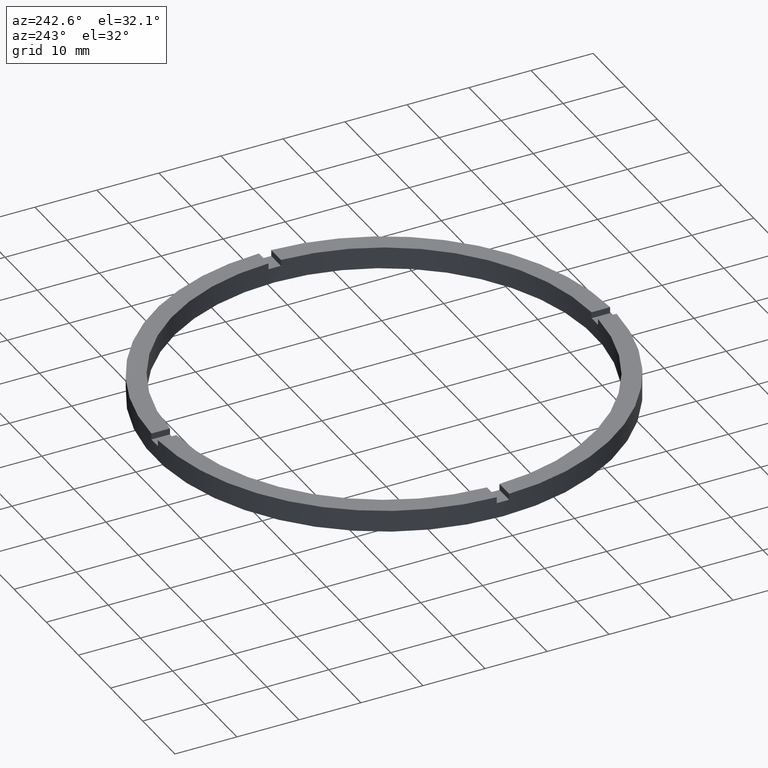
[diagram: clean part render]
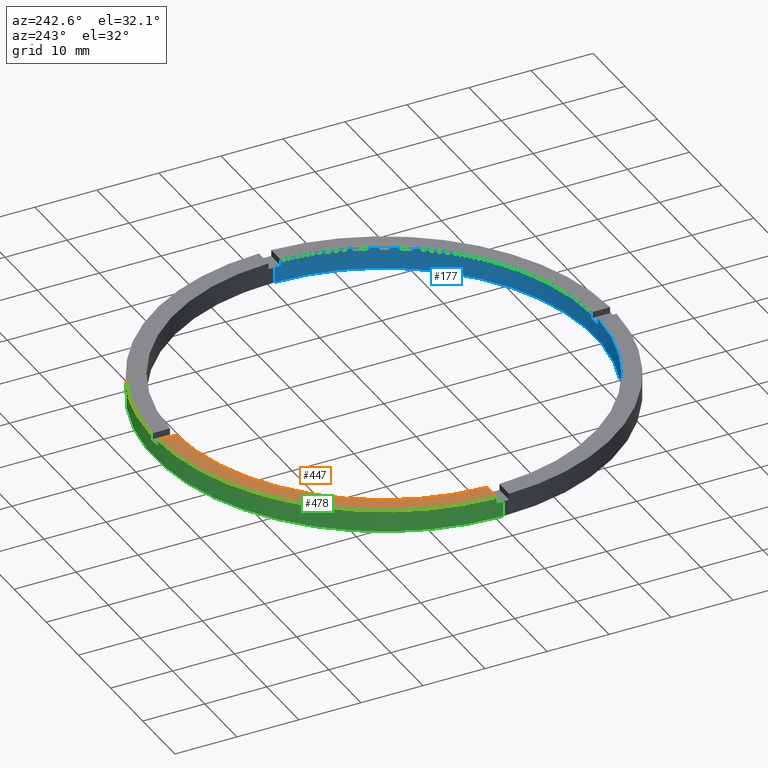
[diagram: same view with three faces highlighted in distinct colors, each labeled with its STEP entity id]
A machine part, auxiliary view with three faces highlighted in distinct colors.
Their STEP definitions:

[orange] entity #447 — the highlighted planar face has unit normal (0, 0, 1).
#55 = AXIS2_PLACEMENT_3D ( 'NONE', #304, #268, #190 ) ;
#74 = DIRECTION ( 'NONE',  ( 0.000000000000000000, 0.000000000000000000, 1.000000000000000000 ) ) ;
#110 = EDGE_CURVE ( 'NONE', #224, #684, #123, .T. ) ;
#123 = LINE ( 'NONE', #174, #129 ) ;
#129 = VECTOR ( 'NONE', #679, 1000.000000000000000 ) ;
#150 = VERTEX_POINT ( 'NONE', #405 ) ;
#172 = AXIS2_PLACEMENT_3D ( 'NONE', #563, #74, #567 ) ;
#174 = CARTESIAN_POINT ( 'NONE',  ( -27.00000000000018474, 0.9999999999999746869, 3.500000000000000000 ) ) ;
#190 = DIRECTION ( 'NONE',  ( 1.000000000000000000, 0.000000000000000000, -0.000000000000000000 ) ) ;
#194 = CARTESIAN_POINT ( 'NONE',  ( -36.98648401781385786, 0.9999999999999726885, 3.500000000000000000 ) ) ;
#198 = AXIS2_PLACEMENT_3D ( 'NONE', #530, #582, #472 ) ;
#213 = FACE_OUTER_BOUND ( 'NONE', #670, .T. ) ;
#214 = CIRCLE ( 'NONE', #198, 37.00000000000000000 ) ;
#224 = VERTEX_POINT ( 'NONE', #286 ) ;
#232 = LINE ( 'NONE', #257, #241 ) ;
#241 = VECTOR ( 'NONE', #452, 1000.000000000000000 ) ;
#257 = CARTESIAN_POINT ( 'NONE',  ( -1.000000000000025091, 26.99999999999999645, 3.500000000000000000 ) ) ;
#268 = DIRECTION ( 'NONE',  ( 0.000000000000000000, 0.000000000000000000, 1.000000000000000000 ) ) ;
#286 = CARTESIAN_POINT ( 'NONE',  ( -33.98529093593285921, 0.9999999999999731326, 3.500000000000000000 ) ) ;
#288 = PLANE ( 'NONE',  #55 ) ;
#304 = CARTESIAN_POINT ( 'NONE',  ( 0.000000000000000000, 0.000000000000000000, 3.500000000000000000 ) ) ;
#405 = CARTESIAN_POINT ( 'NONE',  ( -1.000000000000025091, 33.98529093593285211, 3.500000000000000000 ) ) ;
#416 = ORIENTED_EDGE ( 'NONE', *, *, #422, .F. ) ;
#419 = EDGE_CURVE ( 'NONE', #150, #224, #772, .T. ) ;
#420 = ORIENTED_EDGE ( 'NONE', *, *, #419, .F. ) ;
#422 = EDGE_CURVE ( 'NONE', #494, #150, #232, .T. ) ;
#447 = ADVANCED_FACE ( 'NONE', ( #213 ), #288, .T. ) ;
#452 = DIRECTION ( 'NONE',  ( -0.000000000000000000, -1.000000000000000000, -0.000000000000000000 ) ) ;
#457 = ORIENTED_EDGE ( 'NONE', *, *, #463, .T. ) ;
#463 = EDGE_CURVE ( 'NONE', #494, #684, #214, .T. ) ;
#472 = DIRECTION ( 'NONE',  ( 1.000000000000000000, 0.000000000000000000, 0.000000000000000000 ) ) ;
#494 = VERTEX_POINT ( 'NONE', #548 ) ;
#530 = CARTESIAN_POINT ( 'NONE',  ( 0.000000000000000000, 0.000000000000000000, 3.500000000000000000 ) ) ;
#548 = CARTESIAN_POINT ( 'NONE',  ( -1.000000000000025091, 36.98648401781385786, 3.500000000000000000 ) ) ;
#563 = CARTESIAN_POINT ( 'NONE',  ( 0.000000000000000000, 0.000000000000000000, 3.500000000000000000 ) ) ;
#567 = DIRECTION ( 'NONE',  ( 1.000000000000000000, 0.000000000000000000, 0.000000000000000000 ) ) ;
#582 = DIRECTION ( 'NONE',  ( 0.000000000000000000, 0.000000000000000000, 1.000000000000000000 ) ) ;
#670 = EDGE_LOOP ( 'NONE', ( #416, #457, #732, #420 ) ) ;
#679 = DIRECTION ( 'NONE',  ( -1.000000000000000000, -1.951563910473907735E-16, 0.000000000000000000 ) ) ;
#684 = VERTEX_POINT ( 'NONE', #194 ) ;
#732 = ORIENTED_EDGE ( 'NONE', *, *, #110, .F. ) ;
#772 = CIRCLE ( 'NONE', #172, 34.00000000000000000 ) ;

[blue] entity #177 — the highlighted cylindrical surface (partial cylindrical patch) has radius 34 mm, axis along (-0, -0, -1).
#3 = EDGE_CURVE ( 'NONE', #204, #340, #402, .T. ) ;
#4 = CARTESIAN_POINT ( 'NONE',  ( 0.9999999999998395728, -33.98529093593285921, 3.500000000000000000 ) ) ;
#12 = EDGE_CURVE ( 'NONE', #382, #31, #655, .T. ) ;
#14 = CARTESIAN_POINT ( 'NONE',  ( -34.00000000000000000, 0.000000000000000000, 0.000000000000000000 ) ) ;
#31 = VERTEX_POINT ( 'NONE', #252 ) ;
#32 = DIRECTION ( 'NONE',  ( -0.000000000000000000, -0.000000000000000000, -1.000000000000000000 ) ) ;
#37 = CARTESIAN_POINT ( 'NONE',  ( -33.98529093593285211, -1.000000000000026867, 3.500000000000000000 ) ) ;
#39 = CARTESIAN_POINT ( 'NONE',  ( 0.000000000000000000, 0.000000000000000000, 2.500000000000000000 ) ) ;
#50 = VECTOR ( 'NONE', #738, 1000.000000000000000 ) ;
#68 = CARTESIAN_POINT ( 'NONE',  ( 0.000000000000000000, 0.000000000000000000, 3.500000000000000000 ) ) ;
#92 = DIRECTION ( 'NONE',  ( -1.000000000000000000, 0.000000000000000000, 0.000000000000000000 ) ) ;
#93 = DIRECTION ( 'NONE',  ( -0.000000000000000000, -0.000000000000000000, -1.000000000000000000 ) ) ;
#94 = LINE ( 'NONE', #37, #617 ) ;
#103 = DIRECTION ( 'NONE',  ( -0.000000000000000000, 0.000000000000000000, 1.000000000000000000 ) ) ;
#106 = ORIENTED_EDGE ( 'NONE', *, *, #445, .T. ) ;
#109 = VERTEX_POINT ( 'NONE', #433 ) ;
#111 = CARTESIAN_POINT ( 'NONE',  ( 33.98529093593285211, -1.000000000000157874, 3.500000000000000000 ) ) ;
#124 = ORIENTED_EDGE ( 'NONE', *, *, #466, .F. ) ;
#142 = ORIENTED_EDGE ( 'NONE', *, *, #531, .T. ) ;
#158 = DIRECTION ( 'NONE',  ( 1.000000000000000000, 0.000000000000000000, 0.000000000000000000 ) ) ;
#163 = DIRECTION ( 'NONE',  ( 0.000000000000000000, 0.000000000000000000, 1.000000000000000000 ) ) ;
#164 = DIRECTION ( 'NONE',  ( 1.000000000000000000, 0.000000000000000000, 0.000000000000000000 ) ) ;
#167 = AXIS2_PLACEMENT_3D ( 'NONE', #39, #103, #164 ) ;
#168 = DIRECTION ( 'NONE',  ( 0.000000000000000000, 0.000000000000000000, 1.000000000000000000 ) ) ;
#176 = CARTESIAN_POINT ( 'NONE',  ( -34.00000000000000000, 0.000000000000000000, 3.500000000000000000 ) ) ;
#177 = ADVANCED_FACE ( 'NONE', ( #425 ), #680, .F. ) ;
#186 = CARTESIAN_POINT ( 'NONE',  ( 34.00000000000000000, 4.163799117101000559E-15, 3.500000000000000000 ) ) ;
#195 = ORIENTED_EDGE ( 'NONE', *, *, #3, .T. ) ;
#203 = VERTEX_POINT ( 'NONE', #292 ) ;
#204 = VERTEX_POINT ( 'NONE', #4 ) ;
#209 = EDGE_CURVE ( 'NONE', #204, #654, #342, .T. ) ;
#210 = AXIS2_PLACEMENT_3D ( 'NONE', #68, #701, #417 ) ;
#212 = ORIENTED_EDGE ( 'NONE', *, *, #362, .T. ) ;
#215 = ORIENTED_EDGE ( 'NONE', *, *, #308, .F. ) ;
#222 = EDGE_CURVE ( 'NONE', #737, #352, #94, .T. ) ;
#223 = LINE ( 'NONE', #111, #744 ) ;
#228 = CARTESIAN_POINT ( 'NONE',  ( 34.00000000000000000, 4.163799117101000559E-15, 2.500000000000000000 ) ) ;
#237 = CARTESIAN_POINT ( 'NONE',  ( 33.98529093593285211, -1.000000000000157874, 3.500000000000000000 ) ) ;
#239 = CARTESIAN_POINT ( 'NONE',  ( 0.000000000000000000, 0.000000000000000000, 0.000000000000000000 ) ) ;
#252 = CARTESIAN_POINT ( 'NONE',  ( 34.00000000000000000, 4.163799117101000559E-15, 0.000000000000000000 ) ) ;
#262 = DIRECTION ( 'NONE',  ( 0.000000000000000000, 0.000000000000000000, 1.000000000000000000 ) ) ;
#265 = CIRCLE ( 'NONE', #688, 34.00000000000000000 ) ;
#269 = CIRCLE ( 'NONE', #167, 34.00000000000000000 ) ;
#277 = VECTOR ( 'NONE', #311, 1000.000000000000000 ) ;
#287 = CARTESIAN_POINT ( 'NONE',  ( 0.000000000000000000, 0.000000000000000000, 3.500000000000000000 ) ) ;
#292 = CARTESIAN_POINT ( 'NONE',  ( -1.000000000000160538, -33.98529093593285211, 2.500000000000000000 ) ) ;
#294 = CARTESIAN_POINT ( 'NONE',  ( 0.000000000000000000, 0.000000000000000000, 3.500000000000000000 ) ) ;
#302 = CARTESIAN_POINT ( 'NONE',  ( 0.9999999999998395728, -33.98529093593285921, 2.500000000000000000 ) ) ;
#308 = EDGE_CURVE ( 'NONE', #203, #109, #533, .T. ) ;
#311 = DIRECTION ( 'NONE',  ( 0.000000000000000000, 0.000000000000000000, 1.000000000000000000 ) ) ;
#313 = LINE ( 'NONE', #176, #50 ) ;
#320 = CARTESIAN_POINT ( 'NONE',  ( 0.9999999999998395728, -33.98529093593285921, 3.500000000000000000 ) ) ;
#322 = CIRCLE ( 'NONE', #396, 34.00000000000000000 ) ;
#336 = DIRECTION ( 'NONE',  ( 0.000000000000000000, 0.000000000000000000, 1.000000000000000000 ) ) ;
#338 = CARTESIAN_POINT ( 'NONE',  ( -34.00000000000000000, 0.000000000000000000, 2.500000000000000000 ) ) ;
#340 = VERTEX_POINT ( 'NONE', #237 ) ;
#342 = LINE ( 'NONE', #320, #364 ) ;
#352 = VERTEX_POINT ( 'NONE', #780 ) ;
#357 = ORIENTED_EDGE ( 'NONE', *, *, #569, .T. ) ;
#360 = ORIENTED_EDGE ( 'NONE', *, *, #703, .F. ) ;
#362 = EDGE_CURVE ( 'NONE', #737, #109, #546, .T. ) ;
#364 = VECTOR ( 'NONE', #93, 1000.000000000000000 ) ;
#365 = VERTEX_POINT ( 'NONE', #379 ) ;
#369 = CARTESIAN_POINT ( 'NONE',  ( -33.98529093593285211, -1.000000000000026867, 3.500000000000000000 ) ) ;
#371 = ORIENTED_EDGE ( 'NONE', *, *, #12, .T. ) ;
#379 = CARTESIAN_POINT ( 'NONE',  ( 33.98529093593285211, -1.000000000000157874, 2.500000000000000000 ) ) ;
#382 = VERTEX_POINT ( 'NONE', #228 ) ;
#387 = ORIENTED_EDGE ( 'NONE', *, *, #713, .F. ) ;
#392 = VERTEX_POINT ( 'NONE', #338 ) ;
#396 = AXIS2_PLACEMENT_3D ( 'NONE', #239, #471, #694 ) ;
#398 = AXIS2_PLACEMENT_3D ( 'NONE', #521, #262, #158 ) ;
#402 = CIRCLE ( 'NONE', #695, 34.00000000000000000 ) ;
#417 = DIRECTION ( 'NONE',  ( 1.000000000000000000, 0.000000000000000000, 0.000000000000000000 ) ) ;
#421 = DIRECTION ( 'NONE',  ( -0.000000000000000000, -0.000000000000000000, -1.000000000000000000 ) ) ;
#425 = FACE_OUTER_BOUND ( 'NONE', #726, .T. ) ;
#433 = CARTESIAN_POINT ( 'NONE',  ( -1.000000000000160538, -33.98529093593285211, 3.500000000000000000 ) ) ;
#441 = DIRECTION ( 'NONE',  ( 1.000000000000000000, 0.000000000000000000, 0.000000000000000000 ) ) ;
#445 = EDGE_CURVE ( 'NONE', #365, #382, #510, .T. ) ;
#466 = EDGE_CURVE ( 'NONE', #365, #340, #223, .T. ) ;
#471 = DIRECTION ( 'NONE',  ( 0.000000000000000000, 0.000000000000000000, 1.000000000000000000 ) ) ;
#475 = ORIENTED_EDGE ( 'NONE', *, *, #209, .F. ) ;
#493 = VERTEX_POINT ( 'NONE', #14 ) ;
#510 = CIRCLE ( 'NONE', #398, 34.00000000000000000 ) ;
#521 = CARTESIAN_POINT ( 'NONE',  ( 0.000000000000000000, 0.000000000000000000, 2.500000000000000000 ) ) ;
#531 = EDGE_CURVE ( 'NONE', #392, #352, #265, .T. ) ;
#533 = LINE ( 'NONE', #580, #277 ) ;
#539 = AXIS2_PLACEMENT_3D ( 'NONE', #294, #32, #92 ) ;
#546 = CIRCLE ( 'NONE', #210, 34.00000000000000000 ) ;
#569 = EDGE_CURVE ( 'NONE', #203, #654, #269, .T. ) ;
#580 = CARTESIAN_POINT ( 'NONE',  ( -1.000000000000160538, -33.98529093593285211, 3.500000000000000000 ) ) ;
#604 = DIRECTION ( 'NONE',  ( 1.000000000000000000, 0.000000000000000000, 0.000000000000000000 ) ) ;
#613 = CARTESIAN_POINT ( 'NONE',  ( 0.000000000000000000, 0.000000000000000000, 2.500000000000000000 ) ) ;
#616 = DIRECTION ( 'NONE',  ( -0.000000000000000000, -0.000000000000000000, -1.000000000000000000 ) ) ;
#617 = VECTOR ( 'NONE', #421, 1000.000000000000000 ) ;
#636 = ORIENTED_EDGE ( 'NONE', *, *, #222, .F. ) ;
#654 = VERTEX_POINT ( 'NONE', #302 ) ;
#655 = LINE ( 'NONE', #186, #672 ) ;
#672 = VECTOR ( 'NONE', #616, 1000.000000000000000 ) ;
#680 = CYLINDRICAL_SURFACE ( 'NONE', #539, 34.00000000000000000 ) ;
#688 = AXIS2_PLACEMENT_3D ( 'NONE', #613, #163, #604 ) ;
#694 = DIRECTION ( 'NONE',  ( 1.000000000000000000, 0.000000000000000000, 0.000000000000000000 ) ) ;
#695 = AXIS2_PLACEMENT_3D ( 'NONE', #287, #336, #441 ) ;
#701 = DIRECTION ( 'NONE',  ( 0.000000000000000000, 0.000000000000000000, 1.000000000000000000 ) ) ;
#703 = EDGE_CURVE ( 'NONE', #493, #31, #322, .T. ) ;
#713 = EDGE_CURVE ( 'NONE', #392, #493, #313, .T. ) ;
#726 = EDGE_LOOP ( 'NONE', ( #106, #371, #360, #387, #142, #636, #212, #215, #357, #475, #195, #124 ) ) ;
#737 = VERTEX_POINT ( 'NONE', #369 ) ;
#738 = DIRECTION ( 'NONE',  ( -0.000000000000000000, -0.000000000000000000, -1.000000000000000000 ) ) ;
#744 = VECTOR ( 'NONE', #168, 1000.000000000000000 ) ;
#780 = CARTESIAN_POINT ( 'NONE',  ( -33.98529093593285211, -1.000000000000026867, 2.500000000000000000 ) ) ;

[green] entity #478 — the highlighted cylindrical surface (partial cylindrical patch) has radius 37 mm, axis along (-0, -0, -1).
#6 = DIRECTION ( 'NONE',  ( 1.000000000000000000, 0.000000000000000000, 0.000000000000000000 ) ) ;
#8 = VECTOR ( 'NONE', #225, 1000.000000000000000 ) ;
#33 = EDGE_CURVE ( 'NONE', #623, #206, #118, .T. ) ;
#41 = EDGE_CURVE ( 'NONE', #739, #545, #643, .T. ) ;
#60 = CARTESIAN_POINT ( 'NONE',  ( 37.00000000000000000, 4.531193156845206793E-15, 2.500000000000000000 ) ) ;
#80 = LINE ( 'NONE', #520, #629 ) ;
#82 = DIRECTION ( 'NONE',  ( 0.000000000000000000, 0.000000000000000000, 1.000000000000000000 ) ) ;
#90 = ORIENTED_EDGE ( 'NONE', *, *, #514, .F. ) ;
#98 = VECTOR ( 'NONE', #444, 1000.000000000000000 ) ;
#118 = LINE ( 'NONE', #561, #137 ) ;
#121 = VERTEX_POINT ( 'NONE', #543 ) ;
#122 = DIRECTION ( 'NONE',  ( -1.000000000000000000, 0.000000000000000000, 0.000000000000000000 ) ) ;
#130 = ORIENTED_EDGE ( 'NONE', *, *, #553, .T. ) ;
#135 = VECTOR ( 'NONE', #180, 1000.000000000000000 ) ;
#137 = VECTOR ( 'NONE', #373, 1000.000000000000000 ) ;
#139 = AXIS2_PLACEMENT_3D ( 'NONE', #536, #649, #122 ) ;
#148 = DIRECTION ( 'NONE',  ( 1.000000000000000000, 0.000000000000000000, 0.000000000000000000 ) ) ;
#149 = CARTESIAN_POINT ( 'NONE',  ( -37.00000000000000000, 0.000000000000000000, 2.500000000000000000 ) ) ;
#152 = VERTEX_POINT ( 'NONE', #769 ) ;
#161 = DIRECTION ( 'NONE',  ( 1.000000000000000000, 0.000000000000000000, 0.000000000000000000 ) ) ;
#180 = DIRECTION ( 'NONE',  ( -0.000000000000000000, -0.000000000000000000, -1.000000000000000000 ) ) ;
#194 = CARTESIAN_POINT ( 'NONE',  ( -36.98648401781385786, 0.9999999999999726885, 3.500000000000000000 ) ) ;
#197 = ORIENTED_EDGE ( 'NONE', *, *, #263, .T. ) ;
#198 = AXIS2_PLACEMENT_3D ( 'NONE', #530, #582, #472 ) ;
#202 = ORIENTED_EDGE ( 'NONE', *, *, #261, .F. ) ;
#205 = EDGE_CURVE ( 'NONE', #623, #480, #326, .T. ) ;
#206 = VERTEX_POINT ( 'NONE', #771 ) ;
#211 = DIRECTION ( 'NONE',  ( 0.000000000000000000, 0.000000000000000000, 1.000000000000000000 ) ) ;
#214 = CIRCLE ( 'NONE', #198, 37.00000000000000000 ) ;
#225 = DIRECTION ( 'NONE',  ( -0.000000000000000000, -0.000000000000000000, -1.000000000000000000 ) ) ;
#229 = CIRCLE ( 'NONE', #696, 37.00000000000000000 ) ;
#245 = CARTESIAN_POINT ( 'NONE',  ( -37.00000000000000000, 0.000000000000000000, 0.000000000000000000 ) ) ;
#247 = CARTESIAN_POINT ( 'NONE',  ( -37.00000000000000000, 0.000000000000000000, 3.500000000000000000 ) ) ;
#254 = AXIS2_PLACEMENT_3D ( 'NONE', #486, #82, #325 ) ;
#261 = EDGE_CURVE ( 'NONE', #745, #492, #622, .T. ) ;
#263 = EDGE_CURVE ( 'NONE', #745, #480, #80, .T. ) ;
#271 = LINE ( 'NONE', #715, #276 ) ;
#276 = VECTOR ( 'NONE', #341, 1000.000000000000000 ) ;
#284 = DIRECTION ( 'NONE',  ( 0.000000000000000000, 0.000000000000000000, 1.000000000000000000 ) ) ;
#325 = DIRECTION ( 'NONE',  ( 1.000000000000000000, 0.000000000000000000, 0.000000000000000000 ) ) ;
#326 = CIRCLE ( 'NONE', #254, 37.00000000000000000 ) ;
#337 = LINE ( 'NONE', #383, #98 ) ;
#341 = DIRECTION ( 'NONE',  ( 0.000000000000000000, 0.000000000000000000, 1.000000000000000000 ) ) ;
#344 = EDGE_CURVE ( 'NONE', #152, #684, #271, .T. ) ;
#347 = AXIS2_PLACEMENT_3D ( 'NONE', #767, #211, #161 ) ;
#355 = CARTESIAN_POINT ( 'NONE',  ( 36.98648401781386497, 0.9999999999998423483, 2.500000000000000000 ) ) ;
#363 = EDGE_CURVE ( 'NONE', #152, #739, #229, .T. ) ;
#370 = DIRECTION ( 'NONE',  ( 0.000000000000000000, -0.000000000000000000, 1.000000000000000000 ) ) ;
#373 = DIRECTION ( 'NONE',  ( -0.000000000000000000, -0.000000000000000000, -1.000000000000000000 ) ) ;
#383 = CARTESIAN_POINT ( 'NONE',  ( 0.9999999999999749090, 36.98648401781385786, 3.500000000000000000 ) ) ;
#389 = ORIENTED_EDGE ( 'NONE', *, *, #41, .F. ) ;
#414 = ORIENTED_EDGE ( 'NONE', *, *, #463, .F. ) ;
#444 = DIRECTION ( 'NONE',  ( 0.000000000000000000, 0.000000000000000000, 1.000000000000000000 ) ) ;
#456 = DIRECTION ( 'NONE',  ( -0.000000000000000000, -0.000000000000000000, -1.000000000000000000 ) ) ;
#463 = EDGE_CURVE ( 'NONE', #494, #684, #214, .T. ) ;
#472 = DIRECTION ( 'NONE',  ( 1.000000000000000000, 0.000000000000000000, 0.000000000000000000 ) ) ;
#476 = CARTESIAN_POINT ( 'NONE',  ( 0.9999999999999749090, 36.98648401781385786, 3.500000000000000000 ) ) ;
#478 = ADVANCED_FACE ( 'NONE', ( #749 ), #529, .T. ) ;
#480 = VERTEX_POINT ( 'NONE', #355 ) ;
#481 = ORIENTED_EDGE ( 'NONE', *, *, #666, .T. ) ;
#485 = CARTESIAN_POINT ( 'NONE',  ( 0.000000000000000000, 0.000000000000000000, 2.500000000000000000 ) ) ;
#486 = CARTESIAN_POINT ( 'NONE',  ( 0.000000000000000000, 0.000000000000000000, 2.500000000000000000 ) ) ;
#492 = VERTEX_POINT ( 'NONE', #476 ) ;
#494 = VERTEX_POINT ( 'NONE', #548 ) ;
#514 = EDGE_CURVE ( 'NONE', #121, #664, #517, .T. ) ;
#517 = CIRCLE ( 'NONE', #527, 37.00000000000000000 ) ;
#520 = CARTESIAN_POINT ( 'NONE',  ( 36.98648401781386497, 0.9999999999998423483, 3.500000000000000000 ) ) ;
#526 = LINE ( 'NONE', #594, #8 ) ;
#527 = AXIS2_PLACEMENT_3D ( 'NONE', #485, #370, #6 ) ;
#529 = CYLINDRICAL_SURFACE ( 'NONE', #139, 37.00000000000000000 ) ;
#530 = CARTESIAN_POINT ( 'NONE',  ( 0.000000000000000000, 0.000000000000000000, 3.500000000000000000 ) ) ;
#536 = CARTESIAN_POINT ( 'NONE',  ( 0.000000000000000000, 0.000000000000000000, 3.500000000000000000 ) ) ;
#543 = CARTESIAN_POINT ( 'NONE',  ( 0.9999999999999749090, 36.98648401781385786, 2.500000000000000000 ) ) ;
#545 = VERTEX_POINT ( 'NONE', #245 ) ;
#548 = CARTESIAN_POINT ( 'NONE',  ( -1.000000000000025091, 36.98648401781385786, 3.500000000000000000 ) ) ;
#553 = EDGE_CURVE ( 'NONE', #494, #664, #526, .T. ) ;
#560 = CARTESIAN_POINT ( 'NONE',  ( -1.000000000000025091, 36.98648401781385786, 2.500000000000000000 ) ) ;
#561 = CARTESIAN_POINT ( 'NONE',  ( 37.00000000000000000, 4.531193156845206793E-15, 3.500000000000000000 ) ) ;
#582 = DIRECTION ( 'NONE',  ( 0.000000000000000000, 0.000000000000000000, 1.000000000000000000 ) ) ;
#594 = CARTESIAN_POINT ( 'NONE',  ( -1.000000000000025091, 36.98648401781385786, 3.500000000000000000 ) ) ;
#599 = AXIS2_PLACEMENT_3D ( 'NONE', #699, #736, #746 ) ;
#609 = CIRCLE ( 'NONE', #599, 37.00000000000000000 ) ;
#622 = CIRCLE ( 'NONE', #347, 37.00000000000000000 ) ;
#623 = VERTEX_POINT ( 'NONE', #60 ) ;
#629 = VECTOR ( 'NONE', #456, 1000.000000000000000 ) ;
#631 = CARTESIAN_POINT ( 'NONE',  ( 0.000000000000000000, 0.000000000000000000, 2.500000000000000000 ) ) ;
#641 = ORIENTED_EDGE ( 'NONE', *, *, #676, .T. ) ;
#643 = LINE ( 'NONE', #247, #135 ) ;
#649 = DIRECTION ( 'NONE',  ( -0.000000000000000000, -0.000000000000000000, -1.000000000000000000 ) ) ;
#650 = ORIENTED_EDGE ( 'NONE', *, *, #344, .T. ) ;
#664 = VERTEX_POINT ( 'NONE', #560 ) ;
#666 = EDGE_CURVE ( 'NONE', #206, #545, #609, .T. ) ;
#671 = ORIENTED_EDGE ( 'NONE', *, *, #205, .F. ) ;
#676 = EDGE_CURVE ( 'NONE', #121, #492, #337, .T. ) ;
#684 = VERTEX_POINT ( 'NONE', #194 ) ;
#696 = AXIS2_PLACEMENT_3D ( 'NONE', #631, #284, #148 ) ;
#699 = CARTESIAN_POINT ( 'NONE',  ( 0.000000000000000000, 0.000000000000000000, 0.000000000000000000 ) ) ;
#715 = CARTESIAN_POINT ( 'NONE',  ( -36.98648401781385786, 0.9999999999999726885, 3.500000000000000000 ) ) ;
#723 = CARTESIAN_POINT ( 'NONE',  ( 36.98648401781386497, 0.9999999999998423483, 3.500000000000000000 ) ) ;
#725 = ORIENTED_EDGE ( 'NONE', *, *, #33, .T. ) ;
#729 = ORIENTED_EDGE ( 'NONE', *, *, #363, .F. ) ;
#736 = DIRECTION ( 'NONE',  ( 0.000000000000000000, 0.000000000000000000, 1.000000000000000000 ) ) ;
#739 = VERTEX_POINT ( 'NONE', #149 ) ;
#745 = VERTEX_POINT ( 'NONE', #723 ) ;
#746 = DIRECTION ( 'NONE',  ( 1.000000000000000000, 0.000000000000000000, 0.000000000000000000 ) ) ;
#749 = FACE_OUTER_BOUND ( 'NONE', #750, .T. ) ;
#750 = EDGE_LOOP ( 'NONE', ( #671, #725, #481, #389, #729, #650, #414, #130, #90, #641, #202, #197 ) ) ;
#767 = CARTESIAN_POINT ( 'NONE',  ( 0.000000000000000000, 0.000000000000000000, 3.500000000000000000 ) ) ;
#769 = CARTESIAN_POINT ( 'NONE',  ( -36.98648401781385786, 0.9999999999999726885, 2.500000000000000000 ) ) ;
#771 = CARTESIAN_POINT ( 'NONE',  ( 37.00000000000000000, 4.531193156845206793E-15, 0.000000000000000000 ) ) ;